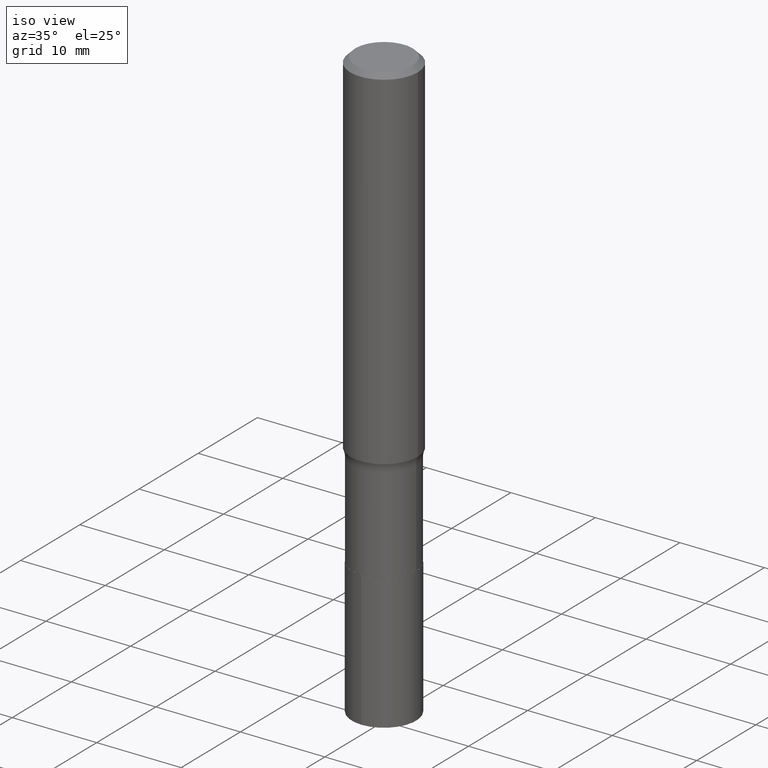
[diagram: clean part render]
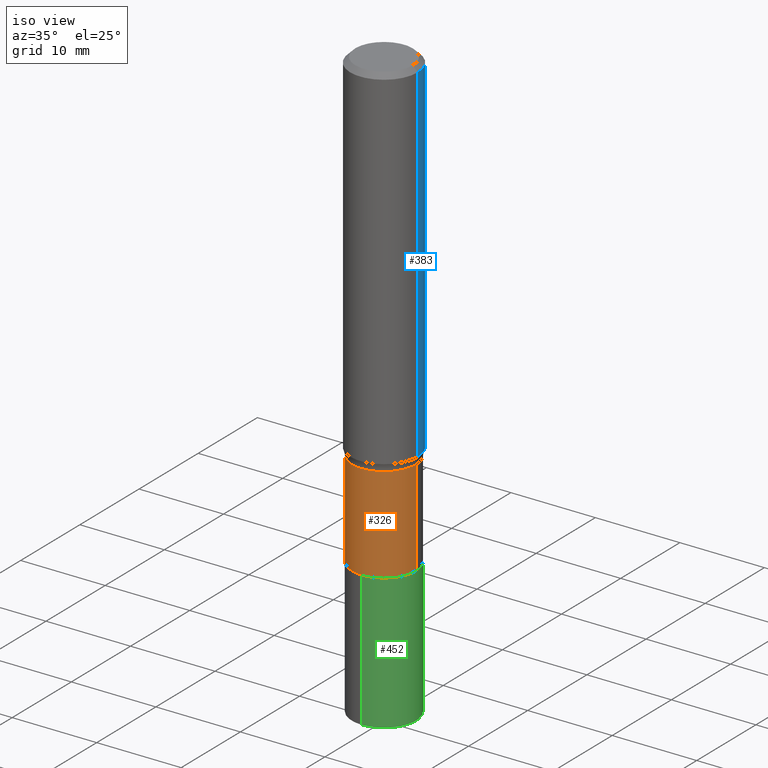
[diagram: same view with three faces highlighted in distinct colors, each labeled with its STEP entity id]
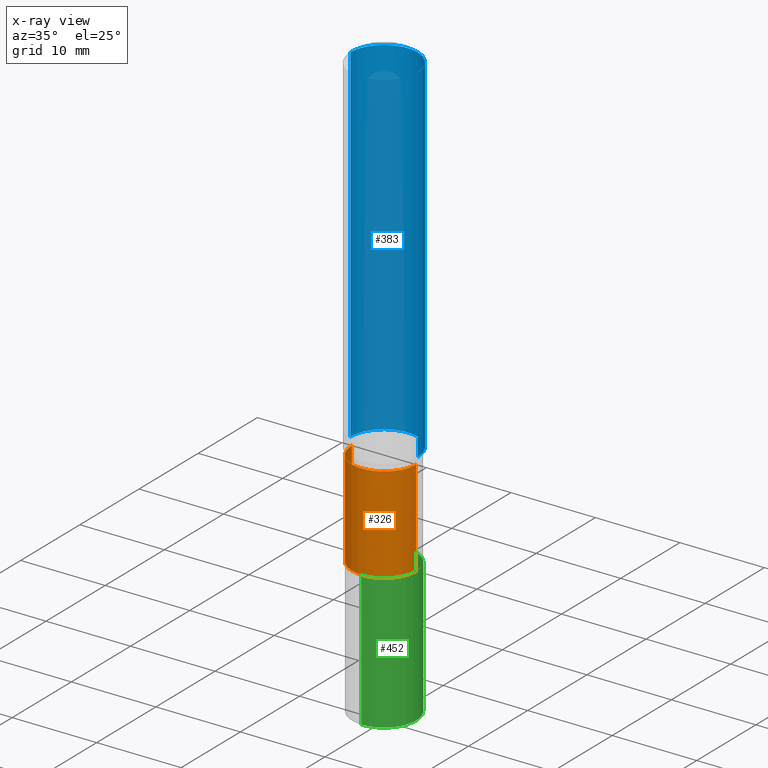
[diagram: x-ray of the same camera — body ghosted, the three highlighted faces saturated]
A machine part, iso view with three faces highlighted in distinct colors.
The next image is the same camera in x-ray (body ghosted, the three faces saturated) — at least one of them is partly hidden behind the body in this view.
Their STEP definitions:

[orange] entity #326 — the highlighted cylindrical surface (partial cylindrical patch) has radius 3.7998 mm, axis along (-0, 0, 1).
#9 = EDGE_CURVE ( 'NONE', #314, #416, #275, .T. ) ;
#16 = AXIS2_PLACEMENT_3D ( 'NONE', #349, #31, #140 ) ;
#31 = DIRECTION ( 'NONE',  ( -2.445468806185136597E-29, 3.491481338843145583E-15, 1.000000000000000000 ) ) ;
#52 = EDGE_CURVE ( 'NONE', #445, #454, #216, .T. ) ;
#75 = CARTESIAN_POINT ( 'NONE',  ( -0.1496000000000000107, -5.575032388711477512E-15, -2.125399999999999956 ) ) ;
#92 = CARTESIAN_POINT ( 'NONE',  ( -0.1495999999999999830, 1.062971932697109757E-15, -7.358726895021338760E-30 ) ) ;
#105 = DIRECTION ( 'NONE',  ( 1.000000000000000000, -6.982962677686266711E-15, 4.876176775795936353E-29 ) ) ;
#112 = DIRECTION ( 'NONE',  ( -2.445468806185136597E-29, 3.491481338843145583E-15, 1.000000000000000000 ) ) ;
#140 = DIRECTION ( 'NONE',  ( 1.000000000000000000, -6.982962677686268288E-15, 0.000000000000000000 ) ) ;
#190 = ORIENTED_EDGE ( 'NONE', *, *, #322, .F. ) ;
#210 = ORIENTED_EDGE ( 'NONE', *, *, #9, .F. ) ;
#214 = CIRCLE ( 'NONE', #247, 0.1495999999999999552 ) ;
#216 = LINE ( 'NONE', #387, #316 ) ;
#222 = CIRCLE ( 'NONE', #16, 0.1496000000000000107 ) ;
#247 = AXIS2_PLACEMENT_3D ( 'NONE', #431, #112, #459 ) ;
#260 = DIRECTION ( 'NONE',  ( -2.445468806185136597E-29, 3.491481338843145583E-15, 1.000000000000000000 ) ) ;
#273 = CARTESIAN_POINT ( 'NONE',  ( 0.1495999999999999552, -6.899865421821820496E-15, -1.677000000000000268 ) ) ;
#275 = LINE ( 'NONE', #92, #304 ) ;
#284 = DIRECTION ( 'NONE',  ( -2.445468806185136877E-29, 3.491481338843145188E-15, 1.000000000000000000 ) ) ;
#304 = VECTOR ( 'NONE', #380, 39.37007874015748143 ) ;
#314 = VERTEX_POINT ( 'NONE', #75 ) ;
#316 = VECTOR ( 'NONE', #284, 39.37007874015748143 ) ;
#321 = CYLINDRICAL_SURFACE ( 'NONE', #385, 0.1495999999999999830 ) ;
#322 = EDGE_CURVE ( 'NONE', #416, #454, #214, .T. ) ;
#326 = ADVANCED_FACE ( 'NONE', ( #440 ), #321, .T. ) ;
#330 = ORIENTED_EDGE ( 'NONE', *, *, #52, .T. ) ;
#334 = ORIENTED_EDGE ( 'NONE', *, *, #405, .T. ) ;
#349 = CARTESIAN_POINT ( 'NONE',  ( 5.197599400665889285E-29, -7.420794437577220826E-15, -2.125399999999999956 ) ) ;
#361 = CARTESIAN_POINT ( 'NONE',  ( 0.000000000000000000, 0.000000000000000000, 0.000000000000000000 ) ) ;
#380 = DIRECTION ( 'NONE',  ( -2.445468806185136877E-29, 3.491481338843145188E-15, 1.000000000000000000 ) ) ;
#385 = AXIS2_PLACEMENT_3D ( 'NONE', #361, #260, #105 ) ;
#387 = CARTESIAN_POINT ( 'NONE',  ( 0.1495999999999999830, -1.044651216581865404E-15, 7.294760456590720327E-30 ) ) ;
#402 = EDGE_LOOP ( 'NONE', ( #210, #334, #330, #190 ) ) ;
#405 = EDGE_CURVE ( 'NONE', #314, #445, #222, .T. ) ;
#416 = VERTEX_POINT ( 'NONE', #468 ) ;
#422 = CARTESIAN_POINT ( 'NONE',  ( 0.1496000000000000107, -8.465445654159086427E-15, -2.125399999999999956 ) ) ;
#431 = CARTESIAN_POINT ( 'NONE',  ( 4.101051187972474781E-29, -5.855214205239955684E-15, -1.677000000000000268 ) ) ;
#440 = FACE_OUTER_BOUND ( 'NONE', #402, .T. ) ;
#445 = VERTEX_POINT ( 'NONE', #422 ) ;
#454 = VERTEX_POINT ( 'NONE', #273 ) ;
#459 = DIRECTION ( 'NONE',  ( 1.000000000000000000, -6.982962677686264344E-15, 0.000000000000000000 ) ) ;
#468 = CARTESIAN_POINT ( 'NONE',  ( -0.1495999999999999552, -5.575032388711479089E-15, -1.677000000000000268 ) ) ;

[blue] entity #383 — the highlighted cylindrical surface (partial cylindrical patch) has radius 4.0005 mm, axis along (-0, 0, 1).
#15 = CIRCLE ( 'NONE', #65, 0.1575000000000000011 ) ;
#17 = EDGE_CURVE ( 'NONE', #56, #340, #242, .T. ) ;
#27 = ORIENTED_EDGE ( 'NONE', *, *, #202, .T. ) ;
#36 = LINE ( 'NONE', #72, #44 ) ;
#39 = DIRECTION ( 'NONE',  ( -2.445468806185136597E-29, 3.491481338843145583E-15, 1.000000000000000000 ) ) ;
#44 = VECTOR ( 'NONE', #463, 39.37007874015748143 ) ;
#56 = VERTEX_POINT ( 'NONE', #169 ) ;
#65 = AXIS2_PLACEMENT_3D ( 'NONE', #212, #398, #352 ) ;
#72 = CARTESIAN_POINT ( 'NONE',  ( -0.1575000000000000844, 1.119104808822158392E-15, -7.747322767151481189E-30 ) ) ;
#78 = CARTESIAN_POINT ( 'NONE',  ( 4.016281559428142167E-29, -5.734185641958091798E-15, -1.642336041772468835 ) ) ;
#104 = ORIENTED_EDGE ( 'NONE', *, *, #110, .F. ) ;
#109 = AXIS2_PLACEMENT_3D ( 'NONE', #220, #39, #137 ) ;
#110 = EDGE_CURVE ( 'NONE', #340, #442, #15, .T. ) ;
#126 = VERTEX_POINT ( 'NONE', #348 ) ;
#137 = DIRECTION ( 'NONE',  ( 1.000000000000000000, -6.982962677686267499E-15, 4.876176775795936353E-29 ) ) ;
#164 = DIRECTION ( 'NONE',  ( -2.445468806185136877E-29, 3.491481338843145188E-15, 1.000000000000000000 ) ) ;
#169 = CARTESIAN_POINT ( 'NONE',  ( 0.1575000000000001954, -6.834002263693680067E-15, -1.642336041772468835 ) ) ;
#172 = CARTESIAN_POINT ( 'NONE',  ( 0.1575000000000000011, -1.182302868365756679E-15, -0.02362500000000015629 ) ) ;
#185 = CIRCLE ( 'NONE', #283, 0.1575000000000001954 ) ;
#202 = EDGE_CURVE ( 'NONE', #56, #126, #185, .T. ) ;
#204 = CARTESIAN_POINT ( 'NONE',  ( 0.1575000000000000844, -1.099816621735587677E-15, 7.679978421878603638E-30 ) ) ;
#212 = CARTESIAN_POINT ( 'NONE',  ( 5.777420054612422856E-31, -8.248624663016985234E-17, -0.02362500000000015629 ) ) ;
#220 = CARTESIAN_POINT ( 'NONE',  ( 0.000000000000000000, 0.000000000000000000, 0.000000000000000000 ) ) ;
#242 = LINE ( 'NONE', #204, #300 ) ;
#270 = ORIENTED_EDGE ( 'NONE', *, *, #17, .F. ) ;
#283 = AXIS2_PLACEMENT_3D ( 'NONE', #78, #327, #467 ) ;
#300 = VECTOR ( 'NONE', #164, 39.37007874015748143 ) ;
#327 = DIRECTION ( 'NONE',  ( -2.445468806185136597E-29, 3.491481338843145583E-15, 1.000000000000000000 ) ) ;
#332 = CARTESIAN_POINT ( 'NONE',  ( -0.1575000000000000011, -1.789231135471971811E-15, -0.02362500000000015629 ) ) ;
#340 = VERTEX_POINT ( 'NONE', #172 ) ;
#346 = FACE_OUTER_BOUND ( 'NONE', #392, .T. ) ;
#348 = CARTESIAN_POINT ( 'NONE',  ( -0.1575000000000001954, -4.615080833135933406E-15, -1.642336041772468835 ) ) ;
#352 = DIRECTION ( 'NONE',  ( 1.000000000000000000, -6.982962677686265922E-15, 0.000000000000000000 ) ) ;
#372 = EDGE_CURVE ( 'NONE', #126, #442, #36, .T. ) ;
#383 = ADVANCED_FACE ( 'NONE', ( #346 ), #404, .T. ) ;
#392 = EDGE_LOOP ( 'NONE', ( #27, #430, #104, #270 ) ) ;
#398 = DIRECTION ( 'NONE',  ( -2.445468806185136597E-29, 3.491481338843145583E-15, 1.000000000000000000 ) ) ;
#404 = CYLINDRICAL_SURFACE ( 'NONE', #109, 0.1575000000000000844 ) ;
#430 = ORIENTED_EDGE ( 'NONE', *, *, #372, .T. ) ;
#442 = VERTEX_POINT ( 'NONE', #332 ) ;
#463 = DIRECTION ( 'NONE',  ( -2.445468806185136877E-29, 3.491481338843145188E-15, 1.000000000000000000 ) ) ;
#467 = DIRECTION ( 'NONE',  ( 1.000000000000000000, -6.982962677686265922E-15, 0.000000000000000000 ) ) ;

[green] entity #452 — the highlighted cylindrical surface (partial cylindrical patch) has radius 3.7998 mm, axis along (-0, 0, 1).
#2 = AXIS2_PLACEMENT_3D ( 'NONE', #367, #444, #231 ) ;
#8 = EDGE_LOOP ( 'NONE', ( #465, #324, #400, #82 ) ) ;
#43 = DIRECTION ( 'NONE',  ( -2.445815221012428849E-29, 3.490985253093755902E-15, 1.000000000000000000 ) ) ;
#53 = DIRECTION ( 'NONE',  ( -6.982962677686265922E-15, -1.000000000000000000, 3.652203200085913145E-15 ) ) ;
#66 = VECTOR ( 'NONE', #43, 39.37007874015748143 ) ;
#82 = ORIENTED_EDGE ( 'NONE', *, *, #335, .F. ) ;
#85 = CARTESIAN_POINT ( 'NONE',  ( 5.198822135068982087E-29, -7.422540178246643119E-15, -2.125899999999999679 ) ) ;
#97 = CARTESIAN_POINT ( 'NONE',  ( 1.062971932697177205E-15, 0.1495999999999925723, -2.125900000000000567 ) ) ;
#158 = AXIS2_PLACEMENT_3D ( 'NONE', #85, #177, #466 ) ;
#176 = VERTEX_POINT ( 'NONE', #97 ) ;
#177 = DIRECTION ( 'NONE',  ( -2.445815221012428849E-29, 3.490985253093755902E-15, 1.000000000000000000 ) ) ;
#181 = EDGE_CURVE ( 'NONE', #433, #176, #437, .T. ) ;
#231 = DIRECTION ( 'NONE',  ( -6.982962677686265922E-15, -1.000000000000000000, 3.652203200085913145E-15 ) ) ;
#233 = DIRECTION ( 'NONE',  ( -2.445815221012428849E-29, 3.490985253093755902E-15, 1.000000000000000000 ) ) ;
#245 = VECTOR ( 'NONE', #255, 39.37007874015748143 ) ;
#255 = DIRECTION ( 'NONE',  ( -2.445815221012428849E-29, 3.490985253093755902E-15, 1.000000000000000000 ) ) ;
#257 = CARTESIAN_POINT ( 'NONE',  ( -1.044651216581813339E-15, -0.1496000000000074215, -2.125899999999999235 ) ) ;
#259 = EDGE_CURVE ( 'NONE', #439, #433, #443, .T. ) ;
#274 = CARTESIAN_POINT ( 'NONE',  ( 1.062971932697169513E-15, 0.1495999999999903796, -2.755900000000000905 ) ) ;
#288 = CYLINDRICAL_SURFACE ( 'NONE', #406, 0.1496000000000000107 ) ;
#289 = CARTESIAN_POINT ( 'NONE',  ( 1.062971932697161822E-15, 0.1495999999999925723, -2.125900000000000567 ) ) ;
#291 = CARTESIAN_POINT ( 'NONE',  ( -1.044651216581813339E-15, -0.1496000000000074215, -2.125899999999999235 ) ) ;
#311 = CARTESIAN_POINT ( 'NONE',  ( 5.198822135068982087E-29, -7.422540178246643119E-15, -2.125899999999999679 ) ) ;
#324 = ORIENTED_EDGE ( 'NONE', *, *, #181, .T. ) ;
#335 = EDGE_CURVE ( 'NONE', #439, #407, #401, .T. ) ;
#362 = CIRCLE ( 'NONE', #158, 0.1496000000000000107 ) ;
#365 = CARTESIAN_POINT ( 'NONE',  ( -1.044651216581797956E-15, -0.1496000000000096419, -2.755900000000000016 ) ) ;
#367 = CARTESIAN_POINT ( 'NONE',  ( 6.739685724306814341E-29, -9.621860887695710828E-15, -2.755900000000000460 ) ) ;
#386 = FACE_OUTER_BOUND ( 'NONE', #8, .T. ) ;
#388 = EDGE_CURVE ( 'NONE', #407, #176, #362, .T. ) ;
#400 = ORIENTED_EDGE ( 'NONE', *, *, #388, .F. ) ;
#401 = LINE ( 'NONE', #257, #66 ) ;
#406 = AXIS2_PLACEMENT_3D ( 'NONE', #311, #233, #53 ) ;
#407 = VERTEX_POINT ( 'NONE', #291 ) ;
#433 = VERTEX_POINT ( 'NONE', #274 ) ;
#437 = LINE ( 'NONE', #289, #245 ) ;
#439 = VERTEX_POINT ( 'NONE', #365 ) ;
#443 = CIRCLE ( 'NONE', #2, 0.1496000000000000107 ) ;
#444 = DIRECTION ( 'NONE',  ( -2.445815221012428849E-29, 3.490985253093755902E-15, 1.000000000000000000 ) ) ;
#452 = ADVANCED_FACE ( 'NONE', ( #386 ), #288, .T. ) ;
#465 = ORIENTED_EDGE ( 'NONE', *, *, #259, .T. ) ;
#466 = DIRECTION ( 'NONE',  ( -6.982962677686265922E-15, -1.000000000000000000, 3.652203200085913145E-15 ) ) ;